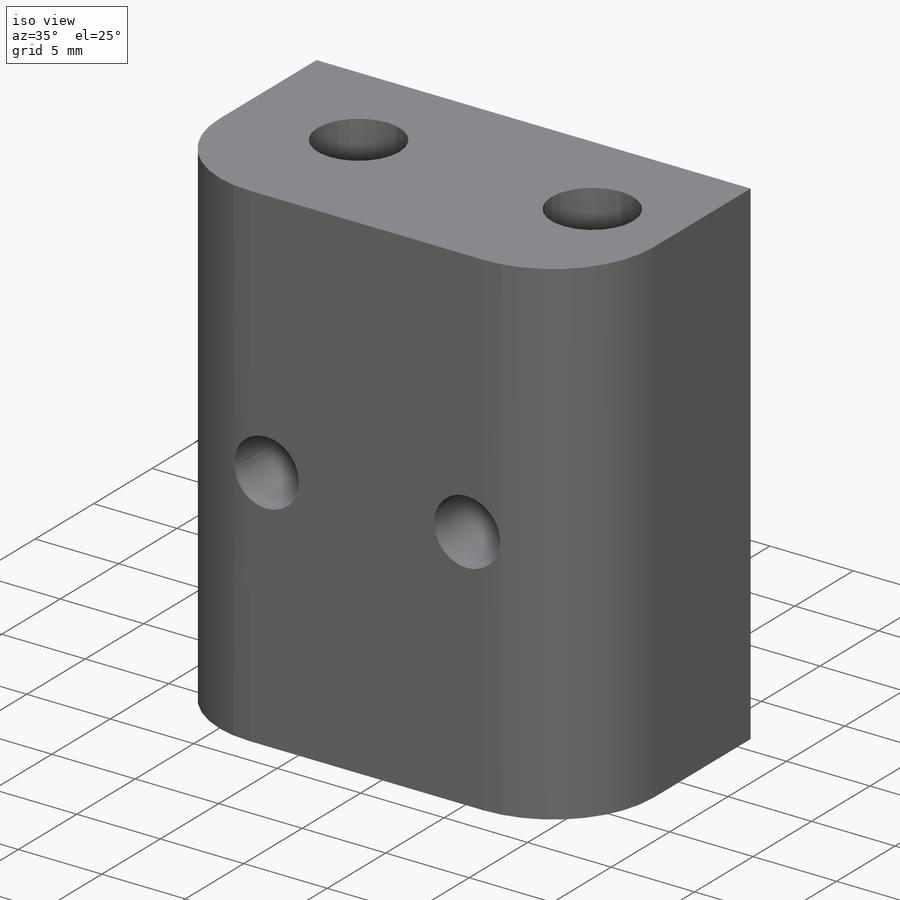
[diagram: iso view]
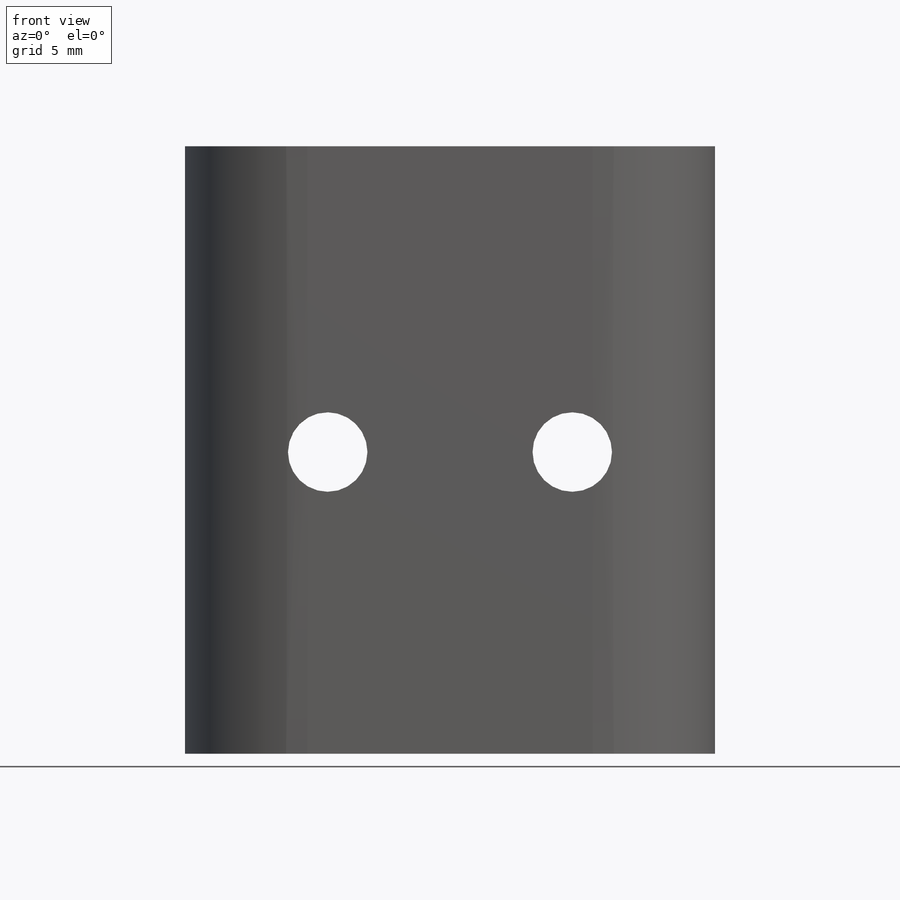
[diagram: front view]
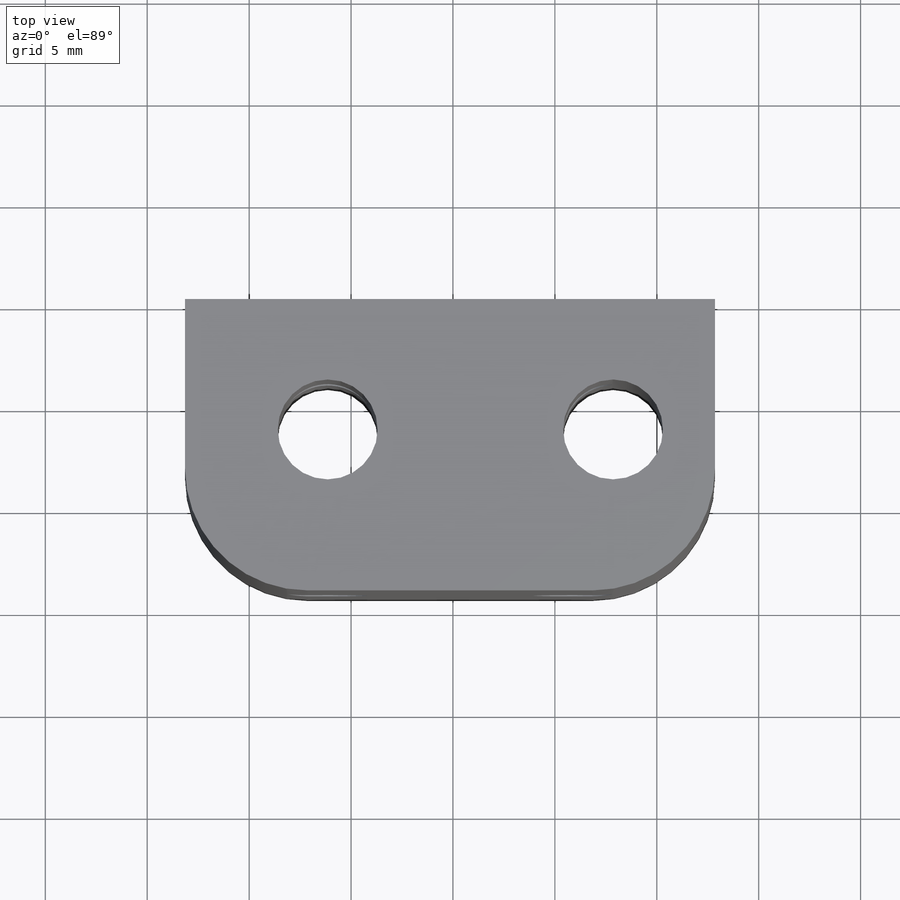
[diagram: top view]
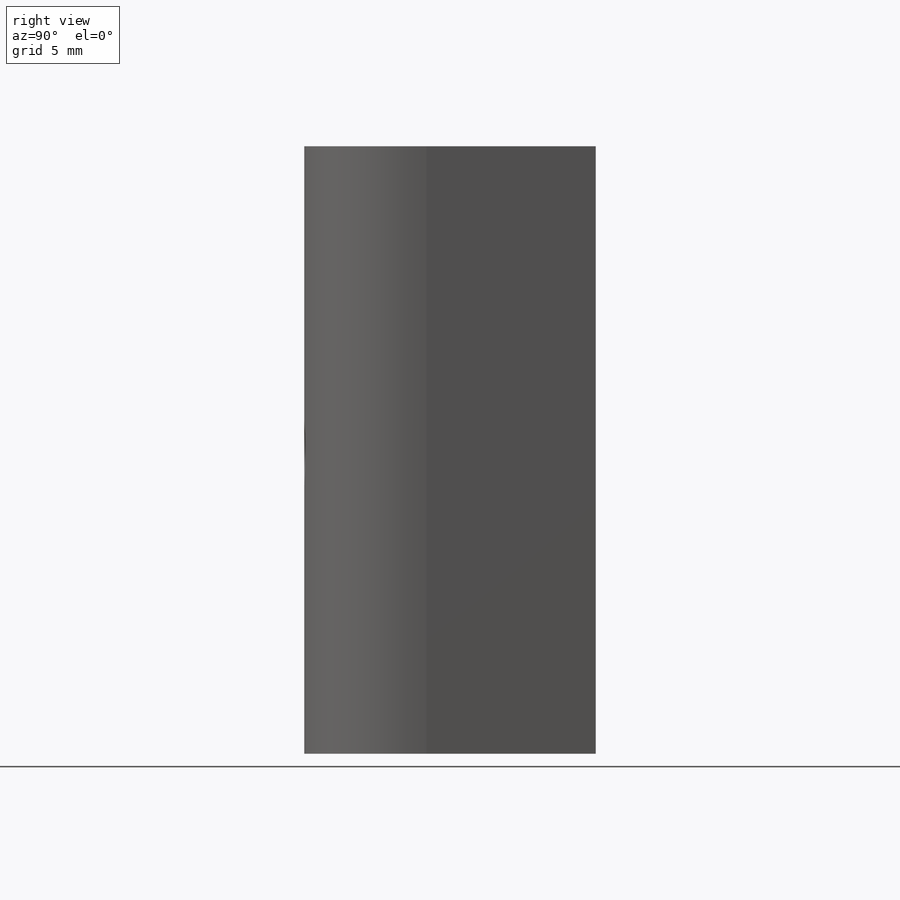
[diagram: right view]
SOLIDWORKS PART (.sldprt)
format: sldprt  version: not decoded by parser v0  size: 126,976 bytes
history: native  units: mm
features: sketch x3, cut_extrude x2, material x1, extrude x1, fillet x1 (+14 scaffold rows collapsed)
feature tree (22):
  scaffold x14  (default folders/planes/origin — collapsed)
  material  "Material <not specified>"
  sketch  "Sketch1"  dims[D1=26.0mm D2=29.8mm]
  extrude  "Extrude1"  Depth=14.3mm
  sketch  "Sketch2"  dims[D1=3.9mm D2=12.0mm D3=15.0mm]
  fillet  "Fillet1"  Radius=6mm
  sketch  "Sketch3"  dims[D1=4.9mm D2=14.0mm D3=7.0mm D4=7.9mm]
  cut_extrude  "Cut-Extrude1"  [1 undecoded]
  cut_extrude  "Extrude2"  [1 undecoded]
decode coverage: 5 of 7 modeling features carry decoded parameters
note: 2 parameter values undecoded
note: suppression state not decoded; provenance and decode notes live in map.json
